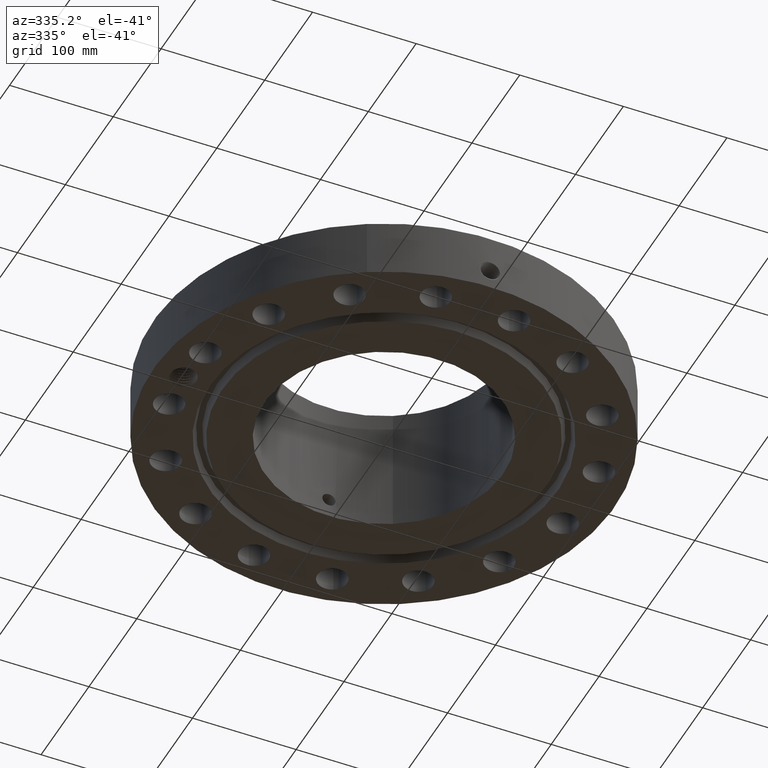
[diagram: clean part render]
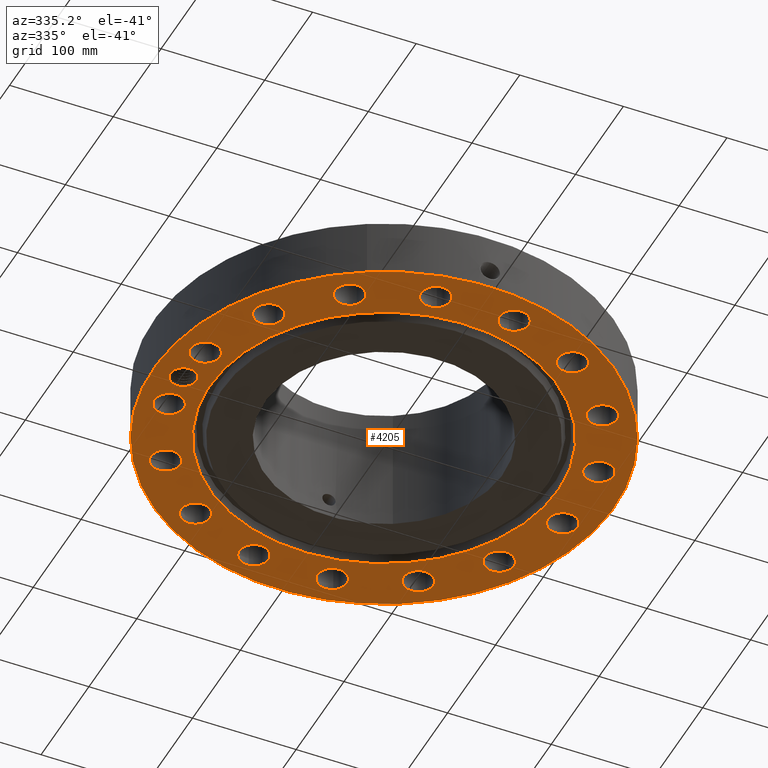
[diagram: same view with one face highlighted and labeled with its STEP entity id]
A machine part, auxiliary view. The second image highlights one B-rep face of the part: STEP entity #4205.
In plain terms, the highlighted planar face has unit normal (0, 0, -1).
Its self-contained STEP definition (entity closure, byte-faithful):
#598=AXIS2_PLACEMENT_3D('Plane Axis2P3D',#595,#596,#597) ;
#3275=AXIS2_PLACEMENT_3D('Circle Axis2P3D',#3273,#3274,$) ;
#3301=AXIS2_PLACEMENT_3D('Circle Axis2P3D',#3299,#3300,$) ;
#3849=AXIS2_PLACEMENT_3D('Circle Axis2P3D',#3847,#3848,$) ;
#3858=AXIS2_PLACEMENT_3D('Circle Axis2P3D',#3856,#3857,$) ;
#3867=AXIS2_PLACEMENT_3D('Circle Axis2P3D',#3865,#3866,$) ;
#3876=AXIS2_PLACEMENT_3D('Circle Axis2P3D',#3874,#3875,$) ;
#3883=AXIS2_PLACEMENT_3D('Circle Axis2P3D',#3881,#3882,$) ;
#3915=AXIS2_PLACEMENT_3D('Circle Axis2P3D',#3913,#3914,$) ;
#3924=AXIS2_PLACEMENT_3D('Circle Axis2P3D',#3922,#3923,$) ;
#3933=AXIS2_PLACEMENT_3D('Circle Axis2P3D',#3931,#3932,$) ;
#3942=AXIS2_PLACEMENT_3D('Circle Axis2P3D',#3940,#3941,$) ;
#3951=AXIS2_PLACEMENT_3D('Circle Axis2P3D',#3949,#3950,$) ;
#3960=AXIS2_PLACEMENT_3D('Circle Axis2P3D',#3958,#3959,$) ;
#3969=AXIS2_PLACEMENT_3D('Circle Axis2P3D',#3967,#3968,$) ;
#3978=AXIS2_PLACEMENT_3D('Circle Axis2P3D',#3976,#3977,$) ;
#3987=AXIS2_PLACEMENT_3D('Circle Axis2P3D',#3985,#3986,$) ;
#3996=AXIS2_PLACEMENT_3D('Circle Axis2P3D',#3994,#3995,$) ;
#4005=AXIS2_PLACEMENT_3D('Circle Axis2P3D',#4003,#4004,$) ;
#4014=AXIS2_PLACEMENT_3D('Circle Axis2P3D',#4012,#4013,$) ;
#4023=AXIS2_PLACEMENT_3D('Circle Axis2P3D',#4021,#4022,$) ;
#4032=AXIS2_PLACEMENT_3D('Circle Axis2P3D',#4030,#4031,$) ;
#4041=AXIS2_PLACEMENT_3D('Circle Axis2P3D',#4039,#4040,$) ;
#4050=AXIS2_PLACEMENT_3D('Circle Axis2P3D',#4048,#4049,$) ;
#4059=AXIS2_PLACEMENT_3D('Circle Axis2P3D',#4057,#4058,$) ;
#4068=AXIS2_PLACEMENT_3D('Circle Axis2P3D',#4066,#4067,$) ;
#4077=AXIS2_PLACEMENT_3D('Circle Axis2P3D',#4075,#4076,$) ;
#4086=AXIS2_PLACEMENT_3D('Circle Axis2P3D',#4084,#4085,$) ;
#4095=AXIS2_PLACEMENT_3D('Circle Axis2P3D',#4093,#4094,$) ;
#4104=AXIS2_PLACEMENT_3D('Circle Axis2P3D',#4102,#4103,$) ;
#4113=AXIS2_PLACEMENT_3D('Circle Axis2P3D',#4111,#4112,$) ;
#4122=AXIS2_PLACEMENT_3D('Circle Axis2P3D',#4120,#4121,$) ;
#4131=AXIS2_PLACEMENT_3D('Circle Axis2P3D',#4129,#4130,$) ;
#4140=AXIS2_PLACEMENT_3D('Circle Axis2P3D',#4138,#4139,$) ;
#4149=AXIS2_PLACEMENT_3D('Circle Axis2P3D',#4147,#4148,$) ;
#4158=AXIS2_PLACEMENT_3D('Circle Axis2P3D',#4156,#4157,$) ;
#4167=AXIS2_PLACEMENT_3D('Circle Axis2P3D',#4165,#4166,$) ;
#4176=AXIS2_PLACEMENT_3D('Circle Axis2P3D',#4174,#4175,$) ;
#4185=AXIS2_PLACEMENT_3D('Circle Axis2P3D',#4183,#4184,$) ;
#4194=AXIS2_PLACEMENT_3D('Circle Axis2P3D',#4192,#4193,$) ;
#595=CARTESIAN_POINT('Axis2P3D Location',(0.,4.53100000002,0.)) ;
#3273=CARTESIAN_POINT('Axis2P3D Location',(0.,0.,3.49676543189E-017)) ;
#3277=CARTESIAN_POINT('Vertex',(-3.16876309742,5.80038194284,3.49676543189E-017)) ;
#3279=CARTESIAN_POINT('Vertex',(3.16876309742,-5.80038194284,3.49676543189E-017)) ;
#3299=CARTESIAN_POINT('Axis2P3D Location',(0.,0.,3.49676543189E-017)) ;
#3847=CARTESIAN_POINT('Axis2P3D Location',(0.,0.,0.)) ;
#3851=CARTESIAN_POINT('Vertex',(-4.1949734628,-7.67884741657,8.39223703654E-016)) ;
#3853=CARTESIAN_POINT('Vertex',(4.1949734628,7.67884741657,8.39223703654E-016)) ;
#3856=CARTESIAN_POINT('Axis2P3D Location',(0.,0.,0.)) ;
#3865=CARTESIAN_POINT('Axis2P3D Location',(-7.62500000003,-1.1189649382E-015,0.)) ;
#3869=CARTESIAN_POINT('Vertex',(-7.18840267549,-0.238514205457,0.)) ;
#3871=CARTESIAN_POINT('Vertex',(-8.11670610883,0.0757056971032,0.)) ;
#3874=CARTESIAN_POINT('Axis2P3D Location',(-7.62500000003,-1.1189649382E-015,0.)) ;
#3878=CARTESIAN_POINT('Vertex',(-8.06159732457,0.238514205457,0.)) ;
#3881=CARTESIAN_POINT('Axis2P3D Location',(-7.62500000003,-1.1189649382E-015,0.)) ;
#3885=CARTESIAN_POINT('Vertex',(-8.08311349621,0.194005862324,0.)) ;
#3889=CARTESIAN_POINT('Control Point',(-8.10602538921,0.136462282232,0.)) ;
#3890=CARTESIAN_POINT('Control Point',(-8.10215852615,0.14825804559,0.)) ;
#3891=CARTESIAN_POINT('Control Point',(-8.09792807786,0.159925190698,0.)) ;
#3892=CARTESIAN_POINT('Control Point',(-8.09333938542,0.171448620247,0.)) ;
#3893=CARTESIAN_POINT('Control Point',(-8.08839877955,0.182813600093,0.)) ;
#3894=CARTESIAN_POINT('Control Point',(-8.08311349621,0.194005862324,0.)) ;
#3895=CARTESIAN_POINT('Vertex',(-8.10602538921,0.13646228223,-4.37095678986E-018)) ;
#3899=CARTESIAN_POINT('Control Point',(-8.10602538921,0.13646228223,0.)) ;
#3900=CARTESIAN_POINT('Control Point',(-8.10891322437,0.124447634858,0.)) ;
#3901=CARTESIAN_POINT('Control Point',(-8.11142831538,0.11234909254,0.)) ;
#3902=CARTESIAN_POINT('Control Point',(-8.11356707991,0.100182066304,0.)) ;
#3903=CARTESIAN_POINT('Control Point',(-8.11532689557,0.087962282477,0.)) ;
#3904=CARTESIAN_POINT('Control Point',(-8.11670610883,0.0757056971032,0.)) ;
#3913=CARTESIAN_POINT('Axis2P3D Location',(7.4784877631,-1.48756370538,0.)) ;
#3917=CARTESIAN_POINT('Vertex',(7.96993399777,-1.756042007,0.)) ;
#3919=CARTESIAN_POINT('Vertex',(6.98704152844,-1.21908540376,0.)) ;
#3922=CARTESIAN_POINT('Axis2P3D Location',(7.4784877631,-1.48756370538,0.)) ;
#3931=CARTESIAN_POINT('Axis2P3D Location',(6.33995579383,-4.23622302679,0.)) ;
#3935=CARTESIAN_POINT('Vertex',(5.98866087428,-3.8001130871,0.)) ;
#3937=CARTESIAN_POINT('Vertex',(6.69125071339,-4.67233296648,0.)) ;
#3940=CARTESIAN_POINT('Axis2P3D Location',(6.33995579383,-4.23622302679,0.)) ;
#3949=CARTESIAN_POINT('Axis2P3D Location',(4.23622302679,-6.33995579383,0.)) ;
#3953=CARTESIAN_POINT('Vertex',(4.07856088935,-5.80260800104,0.)) ;
#3955=CARTESIAN_POINT('Vertex',(4.39388516423,-6.87730358663,0.)) ;
#3958=CARTESIAN_POINT('Axis2P3D Location',(4.23622302679,-6.33995579383,0.)) ;
#3967=CARTESIAN_POINT('Axis2P3D Location',(1.48756370538,-7.4784877631,0.)) ;
#3971=CARTESIAN_POINT('Vertex',(1.54753698127,-6.92170844759,0.)) ;
#3973=CARTESIAN_POINT('Vertex',(1.42759042949,-8.03526707862,0.)) ;
#3976=CARTESIAN_POINT('Axis2P3D Location',(1.48756370538,-7.4784877631,0.)) ;
#3985=CARTESIAN_POINT('Axis2P3D Location',(-1.48756370538,-7.4784877631,0.)) ;
#3989=CARTESIAN_POINT('Vertex',(-1.21908540376,-6.98704152844,0.)) ;
#3991=CARTESIAN_POINT('Vertex',(-1.756042007,-7.96993399777,0.)) ;
#3994=CARTESIAN_POINT('Axis2P3D Location',(-1.48756370538,-7.4784877631,0.)) ;
#4003=CARTESIAN_POINT('Axis2P3D Location',(-4.23622302679,-6.33995579383,0.)) ;
#4007=CARTESIAN_POINT('Vertex',(-3.8001130871,-5.98866087428,0.)) ;
#4009=CARTESIAN_POINT('Vertex',(-4.67233296648,-6.69125071339,0.)) ;
#4012=CARTESIAN_POINT('Axis2P3D Location',(-4.23622302679,-6.33995579383,0.)) ;
#4021=CARTESIAN_POINT('Axis2P3D Location',(-6.33995579383,-4.23622302679,0.)) ;
#4025=CARTESIAN_POINT('Vertex',(-5.80260800104,-4.07856088935,0.)) ;
#4027=CARTESIAN_POINT('Vertex',(-6.87730358663,-4.39388516423,0.)) ;
#4030=CARTESIAN_POINT('Axis2P3D Location',(-6.33995579383,-4.23622302679,0.)) ;
#4039=CARTESIAN_POINT('Axis2P3D Location',(-7.4784877631,-1.48756370538,0.)) ;
#4043=CARTESIAN_POINT('Vertex',(-6.92170844759,-1.54753698127,0.)) ;
#4045=CARTESIAN_POINT('Vertex',(-8.03526707862,-1.42759042949,0.)) ;
#4048=CARTESIAN_POINT('Axis2P3D Location',(-7.4784877631,-1.48756370538,0.)) ;
#4057=CARTESIAN_POINT('Axis2P3D Location',(-7.4784877631,1.48756370538,0.)) ;
#4061=CARTESIAN_POINT('Vertex',(-6.98704152844,1.21908540376,0.)) ;
#4063=CARTESIAN_POINT('Vertex',(-7.96993399777,1.756042007,0.)) ;
#4066=CARTESIAN_POINT('Axis2P3D Location',(-7.4784877631,1.48756370538,0.)) ;
#4075=CARTESIAN_POINT('Axis2P3D Location',(-6.33995579383,4.23622302679,0.)) ;
#4079=CARTESIAN_POINT('Vertex',(-5.98866087428,3.8001130871,0.)) ;
#4081=CARTESIAN_POINT('Vertex',(-6.69125071339,4.67233296648,0.)) ;
#4084=CARTESIAN_POINT('Axis2P3D Location',(-6.33995579383,4.23622302679,0.)) ;
#4093=CARTESIAN_POINT('Axis2P3D Location',(-4.23622302679,6.33995579383,0.)) ;
#4097=CARTESIAN_POINT('Vertex',(-4.07856088935,5.80260800104,0.)) ;
#4099=CARTESIAN_POINT('Vertex',(-4.39388516423,6.87730358663,0.)) ;
#4102=CARTESIAN_POINT('Axis2P3D Location',(-4.23622302679,6.33995579383,0.)) ;
#4111=CARTESIAN_POINT('Axis2P3D Location',(-1.48756370538,7.4784877631,0.)) ;
#4115=CARTESIAN_POINT('Vertex',(-1.54753698127,6.92170844759,0.)) ;
#4117=CARTESIAN_POINT('Vertex',(-1.42759042949,8.03526707862,0.)) ;
#4120=CARTESIAN_POINT('Axis2P3D Location',(-1.48756370538,7.4784877631,0.)) ;
#4129=CARTESIAN_POINT('Axis2P3D Location',(1.48756370538,7.4784877631,0.)) ;
#4133=CARTESIAN_POINT('Vertex',(1.21908540376,6.98704152844,0.)) ;
#4135=CARTESIAN_POINT('Vertex',(1.756042007,7.96993399777,0.)) ;
#4138=CARTESIAN_POINT('Axis2P3D Location',(1.48756370538,7.4784877631,0.)) ;
#4147=CARTESIAN_POINT('Axis2P3D Location',(4.23622302679,6.33995579383,0.)) ;
#4151=CARTESIAN_POINT('Vertex',(3.8001130871,5.98866087428,0.)) ;
#4153=CARTESIAN_POINT('Vertex',(4.67233296648,6.69125071339,-1.67844740731E-015)) ;
#4156=CARTESIAN_POINT('Axis2P3D Location',(4.23622302679,6.33995579383,0.)) ;
#4165=CARTESIAN_POINT('Axis2P3D Location',(6.33995579383,4.23622302679,0.)) ;
#4169=CARTESIAN_POINT('Vertex',(5.80260800104,4.07856088935,0.)) ;
#4171=CARTESIAN_POINT('Vertex',(6.87730358663,4.39388516423,0.)) ;
#4174=CARTESIAN_POINT('Axis2P3D Location',(6.33995579383,4.23622302679,0.)) ;
#4183=CARTESIAN_POINT('Axis2P3D Location',(7.4784877631,1.48756370538,0.)) ;
#4187=CARTESIAN_POINT('Vertex',(6.92170844759,1.54753698127,0.)) ;
#4189=CARTESIAN_POINT('Vertex',(8.03526707862,1.42759042949,0.)) ;
#4192=CARTESIAN_POINT('Axis2P3D Location',(7.4784877631,1.48756370538,0.)) ;
#596=DIRECTION('Axis2P3D Direction',(0.,0.,-0.0393700787402)) ;
#597=DIRECTION('Axis2P3D XDirection',(0.0393700787402,0.,0.)) ;
#3274=DIRECTION('Axis2P3D Direction',(0.,0.,-0.0393700787402)) ;
#3300=DIRECTION('Axis2P3D Direction',(0.,0.,-0.0393700787402)) ;
#3848=DIRECTION('Axis2P3D Direction',(0.,0.,-0.0393700787402)) ;
#3857=DIRECTION('Axis2P3D Direction',(0.,0.,-0.0393700787402)) ;
#3866=DIRECTION('Axis2P3D Direction',(0.,0.,-0.0393700787402)) ;
#3875=DIRECTION('Axis2P3D Direction',(0.,0.,-0.0393700787402)) ;
#3882=DIRECTION('Axis2P3D Direction',(0.,0.,-0.0393700787402)) ;
#3914=DIRECTION('Axis2P3D Direction',(0.,0.,-0.0393700787402)) ;
#3923=DIRECTION('Axis2P3D Direction',(0.,0.,-0.0393700787402)) ;
#3932=DIRECTION('Axis2P3D Direction',(0.,0.,-0.0393700787402)) ;
#3941=DIRECTION('Axis2P3D Direction',(0.,0.,-0.0393700787402)) ;
#3950=DIRECTION('Axis2P3D Direction',(0.,0.,-0.0393700787402)) ;
#3959=DIRECTION('Axis2P3D Direction',(0.,0.,-0.0393700787402)) ;
#3968=DIRECTION('Axis2P3D Direction',(0.,0.,-0.0393700787402)) ;
#3977=DIRECTION('Axis2P3D Direction',(0.,0.,-0.0393700787402)) ;
#3986=DIRECTION('Axis2P3D Direction',(0.,0.,-0.0393700787402)) ;
#3995=DIRECTION('Axis2P3D Direction',(0.,0.,-0.0393700787402)) ;
#4004=DIRECTION('Axis2P3D Direction',(0.,0.,-0.0393700787402)) ;
#4013=DIRECTION('Axis2P3D Direction',(0.,0.,-0.0393700787402)) ;
#4022=DIRECTION('Axis2P3D Direction',(0.,0.,-0.0393700787402)) ;
#4031=DIRECTION('Axis2P3D Direction',(0.,0.,-0.0393700787402)) ;
#4040=DIRECTION('Axis2P3D Direction',(0.,0.,-0.0393700787402)) ;
#4049=DIRECTION('Axis2P3D Direction',(0.,0.,-0.0393700787402)) ;
#4058=DIRECTION('Axis2P3D Direction',(0.,0.,-0.0393700787402)) ;
#4067=DIRECTION('Axis2P3D Direction',(0.,0.,-0.0393700787402)) ;
#4076=DIRECTION('Axis2P3D Direction',(0.,0.,-0.0393700787402)) ;
#4085=DIRECTION('Axis2P3D Direction',(0.,0.,-0.0393700787402)) ;
#4094=DIRECTION('Axis2P3D Direction',(0.,0.,-0.0393700787402)) ;
#4103=DIRECTION('Axis2P3D Direction',(0.,0.,-0.0393700787402)) ;
#4112=DIRECTION('Axis2P3D Direction',(0.,0.,-0.0393700787402)) ;
#4121=DIRECTION('Axis2P3D Direction',(0.,0.,-0.0393700787402)) ;
#4130=DIRECTION('Axis2P3D Direction',(0.,0.,-0.0393700787402)) ;
#4139=DIRECTION('Axis2P3D Direction',(0.,0.,-0.0393700787402)) ;
#4148=DIRECTION('Axis2P3D Direction',(0.,0.,-0.0393700787402)) ;
#4157=DIRECTION('Axis2P3D Direction',(0.,0.,-0.0393700787402)) ;
#4166=DIRECTION('Axis2P3D Direction',(0.,0.,-0.0393700787402)) ;
#4175=DIRECTION('Axis2P3D Direction',(0.,0.,-0.0393700787402)) ;
#4184=DIRECTION('Axis2P3D Direction',(0.,0.,-0.0393700787402)) ;
#4193=DIRECTION('Axis2P3D Direction',(0.,0.,-0.0393700787402)) ;
#3862=ORIENTED_EDGE('',*,*,#3855,.T.) ;
#3863=ORIENTED_EDGE('',*,*,#3860,.T.) ;
#3907=ORIENTED_EDGE('',*,*,#3873,.F.) ;
#3908=ORIENTED_EDGE('',*,*,#3880,.F.) ;
#3909=ORIENTED_EDGE('',*,*,#3887,.F.) ;
#3910=ORIENTED_EDGE('',*,*,#3897,.F.) ;
#3911=ORIENTED_EDGE('',*,*,#3905,.T.) ;
#3928=ORIENTED_EDGE('',*,*,#3921,.F.) ;
#3929=ORIENTED_EDGE('',*,*,#3926,.F.) ;
#3946=ORIENTED_EDGE('',*,*,#3939,.F.) ;
#3947=ORIENTED_EDGE('',*,*,#3944,.F.) ;
#3964=ORIENTED_EDGE('',*,*,#3957,.F.) ;
#3965=ORIENTED_EDGE('',*,*,#3962,.F.) ;
#3982=ORIENTED_EDGE('',*,*,#3975,.F.) ;
#3983=ORIENTED_EDGE('',*,*,#3980,.F.) ;
#4000=ORIENTED_EDGE('',*,*,#3993,.F.) ;
#4001=ORIENTED_EDGE('',*,*,#3998,.F.) ;
#4018=ORIENTED_EDGE('',*,*,#4011,.F.) ;
#4019=ORIENTED_EDGE('',*,*,#4016,.F.) ;
#4036=ORIENTED_EDGE('',*,*,#4029,.F.) ;
#4037=ORIENTED_EDGE('',*,*,#4034,.F.) ;
#4054=ORIENTED_EDGE('',*,*,#4047,.F.) ;
#4055=ORIENTED_EDGE('',*,*,#4052,.F.) ;
#4072=ORIENTED_EDGE('',*,*,#4065,.F.) ;
#4073=ORIENTED_EDGE('',*,*,#4070,.F.) ;
#4090=ORIENTED_EDGE('',*,*,#4083,.F.) ;
#4091=ORIENTED_EDGE('',*,*,#4088,.F.) ;
#4108=ORIENTED_EDGE('',*,*,#4101,.F.) ;
#4109=ORIENTED_EDGE('',*,*,#4106,.F.) ;
#4126=ORIENTED_EDGE('',*,*,#4119,.F.) ;
#4127=ORIENTED_EDGE('',*,*,#4124,.F.) ;
#4144=ORIENTED_EDGE('',*,*,#4137,.F.) ;
#4145=ORIENTED_EDGE('',*,*,#4142,.F.) ;
#4162=ORIENTED_EDGE('',*,*,#4155,.F.) ;
#4163=ORIENTED_EDGE('',*,*,#4160,.F.) ;
#4180=ORIENTED_EDGE('',*,*,#4173,.F.) ;
#4181=ORIENTED_EDGE('',*,*,#4178,.F.) ;
#4198=ORIENTED_EDGE('',*,*,#4191,.F.) ;
#4199=ORIENTED_EDGE('',*,*,#4196,.F.) ;
#4202=ORIENTED_EDGE('',*,*,#3303,.F.) ;
#4203=ORIENTED_EDGE('',*,*,#3281,.F.) ;
#3912=FACE_BOUND('',#3906,.T.) ;
#3930=FACE_BOUND('',#3927,.T.) ;
#3948=FACE_BOUND('',#3945,.T.) ;
#3966=FACE_BOUND('',#3963,.T.) ;
#3984=FACE_BOUND('',#3981,.T.) ;
#4002=FACE_BOUND('',#3999,.T.) ;
#4020=FACE_BOUND('',#4017,.T.) ;
#4038=FACE_BOUND('',#4035,.T.) ;
#4056=FACE_BOUND('',#4053,.T.) ;
#4074=FACE_BOUND('',#4071,.T.) ;
#4092=FACE_BOUND('',#4089,.T.) ;
#4110=FACE_BOUND('',#4107,.T.) ;
#4128=FACE_BOUND('',#4125,.T.) ;
#4146=FACE_BOUND('',#4143,.T.) ;
#4164=FACE_BOUND('',#4161,.T.) ;
#4182=FACE_BOUND('',#4179,.T.) ;
#4200=FACE_BOUND('',#4197,.T.) ;
#4204=FACE_BOUND('',#4201,.T.) ;
#4205=ADVANCED_FACE('PartBody',(#3864,#3912,#3930,#3948,#3966,#3984,#4002,#4020,#4038,#4056,#4074,#4092,#4110,#4128,#4146,#4164,#4182,#4200,#4204),#599,.T.) ;
#3888=B_SPLINE_CURVE_WITH_KNOTS('',5,(#3889,#3890,#3891,#3892,#3893,#3894),.UNSPECIFIED.,.F.,.U.,(6,6),(0.,2.1641313637),.UNSPECIFIED.) ;
#3898=B_SPLINE_CURVE_WITH_KNOTS('',5,(#3899,#3900,#3901,#3902,#3903,#3904),.UNSPECIFIED.,.F.,.U.,(6,6),(0.,2.1542607375),.UNSPECIFIED.) ;
#3276=CIRCLE('generated circle',#3275,6.60950000003) ;
#3302=CIRCLE('generated circle',#3301,6.60950000003) ;
#3850=CIRCLE('generated circle',#3849,8.75000000003) ;
#3859=CIRCLE('generated circle',#3858,8.75000000003) ;
#3868=CIRCLE('generated circle',#3867,0.497500000002) ;
#3877=CIRCLE('generated circle',#3876,0.497500000002) ;
#3884=CIRCLE('generated circle',#3883,0.497500000002) ;
#3916=CIRCLE('generated circle',#3915,0.560000000002) ;
#3925=CIRCLE('generated circle',#3924,0.560000000002) ;
#3934=CIRCLE('generated circle',#3933,0.560000000002) ;
#3943=CIRCLE('generated circle',#3942,0.560000000002) ;
#3952=CIRCLE('generated circle',#3951,0.560000000002) ;
#3961=CIRCLE('generated circle',#3960,0.560000000002) ;
#3970=CIRCLE('generated circle',#3969,0.560000000002) ;
#3979=CIRCLE('generated circle',#3978,0.560000000002) ;
#3988=CIRCLE('generated circle',#3987,0.560000000002) ;
#3997=CIRCLE('generated circle',#3996,0.560000000002) ;
#4006=CIRCLE('generated circle',#4005,0.560000000002) ;
#4015=CIRCLE('generated circle',#4014,0.560000000002) ;
#4024=CIRCLE('generated circle',#4023,0.560000000002) ;
#4033=CIRCLE('generated circle',#4032,0.560000000002) ;
#4042=CIRCLE('generated circle',#4041,0.560000000002) ;
#4051=CIRCLE('generated circle',#4050,0.560000000002) ;
#4060=CIRCLE('generated circle',#4059,0.560000000002) ;
#4069=CIRCLE('generated circle',#4068,0.560000000002) ;
#4078=CIRCLE('generated circle',#4077,0.560000000002) ;
#4087=CIRCLE('generated circle',#4086,0.560000000002) ;
#4096=CIRCLE('generated circle',#4095,0.560000000002) ;
#4105=CIRCLE('generated circle',#4104,0.560000000002) ;
#4114=CIRCLE('generated circle',#4113,0.560000000002) ;
#4123=CIRCLE('generated circle',#4122,0.560000000002) ;
#4132=CIRCLE('generated circle',#4131,0.560000000002) ;
#4141=CIRCLE('generated circle',#4140,0.560000000002) ;
#4150=CIRCLE('generated circle',#4149,0.560000000002) ;
#4159=CIRCLE('generated circle',#4158,0.560000000002) ;
#4168=CIRCLE('generated circle',#4167,0.560000000002) ;
#4177=CIRCLE('generated circle',#4176,0.560000000002) ;
#4186=CIRCLE('generated circle',#4185,0.560000000002) ;
#4195=CIRCLE('generated circle',#4194,0.560000000002) ;
#3281=EDGE_CURVE('',#3278,#3280,#3276,.T.) ;
#3303=EDGE_CURVE('',#3280,#3278,#3302,.T.) ;
#3855=EDGE_CURVE('',#3852,#3854,#3850,.T.) ;
#3860=EDGE_CURVE('',#3854,#3852,#3859,.T.) ;
#3873=EDGE_CURVE('',#3870,#3872,#3868,.T.) ;
#3880=EDGE_CURVE('',#3879,#3870,#3877,.T.) ;
#3887=EDGE_CURVE('',#3886,#3879,#3884,.T.) ;
#3897=EDGE_CURVE('',#3896,#3886,#3888,.T.) ;
#3905=EDGE_CURVE('',#3896,#3872,#3898,.T.) ;
#3921=EDGE_CURVE('',#3918,#3920,#3916,.T.) ;
#3926=EDGE_CURVE('',#3920,#3918,#3925,.T.) ;
#3939=EDGE_CURVE('',#3936,#3938,#3934,.T.) ;
#3944=EDGE_CURVE('',#3938,#3936,#3943,.T.) ;
#3957=EDGE_CURVE('',#3954,#3956,#3952,.T.) ;
#3962=EDGE_CURVE('',#3956,#3954,#3961,.T.) ;
#3975=EDGE_CURVE('',#3972,#3974,#3970,.T.) ;
#3980=EDGE_CURVE('',#3974,#3972,#3979,.T.) ;
#3993=EDGE_CURVE('',#3990,#3992,#3988,.T.) ;
#3998=EDGE_CURVE('',#3992,#3990,#3997,.T.) ;
#4011=EDGE_CURVE('',#4008,#4010,#4006,.T.) ;
#4016=EDGE_CURVE('',#4010,#4008,#4015,.T.) ;
#4029=EDGE_CURVE('',#4026,#4028,#4024,.T.) ;
#4034=EDGE_CURVE('',#4028,#4026,#4033,.T.) ;
#4047=EDGE_CURVE('',#4044,#4046,#4042,.T.) ;
#4052=EDGE_CURVE('',#4046,#4044,#4051,.T.) ;
#4065=EDGE_CURVE('',#4062,#4064,#4060,.T.) ;
#4070=EDGE_CURVE('',#4064,#4062,#4069,.T.) ;
#4083=EDGE_CURVE('',#4080,#4082,#4078,.T.) ;
#4088=EDGE_CURVE('',#4082,#4080,#4087,.T.) ;
#4101=EDGE_CURVE('',#4098,#4100,#4096,.T.) ;
#4106=EDGE_CURVE('',#4100,#4098,#4105,.T.) ;
#4119=EDGE_CURVE('',#4116,#4118,#4114,.T.) ;
#4124=EDGE_CURVE('',#4118,#4116,#4123,.T.) ;
#4137=EDGE_CURVE('',#4134,#4136,#4132,.T.) ;
#4142=EDGE_CURVE('',#4136,#4134,#4141,.T.) ;
#4155=EDGE_CURVE('',#4152,#4154,#4150,.T.) ;
#4160=EDGE_CURVE('',#4154,#4152,#4159,.T.) ;
#4173=EDGE_CURVE('',#4170,#4172,#4168,.T.) ;
#4178=EDGE_CURVE('',#4172,#4170,#4177,.T.) ;
#4191=EDGE_CURVE('',#4188,#4190,#4186,.T.) ;
#4196=EDGE_CURVE('',#4190,#4188,#4195,.T.) ;
#3861=EDGE_LOOP('',(#3862,#3863)) ;
#3906=EDGE_LOOP('',(#3907,#3908,#3909,#3910,#3911)) ;
#3927=EDGE_LOOP('',(#3928,#3929)) ;
#3945=EDGE_LOOP('',(#3946,#3947)) ;
#3963=EDGE_LOOP('',(#3964,#3965)) ;
#3981=EDGE_LOOP('',(#3982,#3983)) ;
#3999=EDGE_LOOP('',(#4000,#4001)) ;
#4017=EDGE_LOOP('',(#4018,#4019)) ;
#4035=EDGE_LOOP('',(#4036,#4037)) ;
#4053=EDGE_LOOP('',(#4054,#4055)) ;
#4071=EDGE_LOOP('',(#4072,#4073)) ;
#4089=EDGE_LOOP('',(#4090,#4091)) ;
#4107=EDGE_LOOP('',(#4108,#4109)) ;
#4125=EDGE_LOOP('',(#4126,#4127)) ;
#4143=EDGE_LOOP('',(#4144,#4145)) ;
#4161=EDGE_LOOP('',(#4162,#4163)) ;
#4179=EDGE_LOOP('',(#4180,#4181)) ;
#4197=EDGE_LOOP('',(#4198,#4199)) ;
#4201=EDGE_LOOP('',(#4202,#4203)) ;
#3864=FACE_OUTER_BOUND('',#3861,.T.) ;
#599=PLANE('',#598) ;
#3278=VERTEX_POINT('',#3277) ;
#3280=VERTEX_POINT('',#3279) ;
#3852=VERTEX_POINT('',#3851) ;
#3854=VERTEX_POINT('',#3853) ;
#3870=VERTEX_POINT('',#3869) ;
#3872=VERTEX_POINT('',#3871) ;
#3879=VERTEX_POINT('',#3878) ;
#3886=VERTEX_POINT('',#3885) ;
#3896=VERTEX_POINT('',#3895) ;
#3918=VERTEX_POINT('',#3917) ;
#3920=VERTEX_POINT('',#3919) ;
#3936=VERTEX_POINT('',#3935) ;
#3938=VERTEX_POINT('',#3937) ;
#3954=VERTEX_POINT('',#3953) ;
#3956=VERTEX_POINT('',#3955) ;
#3972=VERTEX_POINT('',#3971) ;
#3974=VERTEX_POINT('',#3973) ;
#3990=VERTEX_POINT('',#3989) ;
#3992=VERTEX_POINT('',#3991) ;
#4008=VERTEX_POINT('',#4007) ;
#4010=VERTEX_POINT('',#4009) ;
#4026=VERTEX_POINT('',#4025) ;
#4028=VERTEX_POINT('',#4027) ;
#4044=VERTEX_POINT('',#4043) ;
#4046=VERTEX_POINT('',#4045) ;
#4062=VERTEX_POINT('',#4061) ;
#4064=VERTEX_POINT('',#4063) ;
#4080=VERTEX_POINT('',#4079) ;
#4082=VERTEX_POINT('',#4081) ;
#4098=VERTEX_POINT('',#4097) ;
#4100=VERTEX_POINT('',#4099) ;
#4116=VERTEX_POINT('',#4115) ;
#4118=VERTEX_POINT('',#4117) ;
#4134=VERTEX_POINT('',#4133) ;
#4136=VERTEX_POINT('',#4135) ;
#4152=VERTEX_POINT('',#4151) ;
#4154=VERTEX_POINT('',#4153) ;
#4170=VERTEX_POINT('',#4169) ;
#4172=VERTEX_POINT('',#4171) ;
#4188=VERTEX_POINT('',#4187) ;
#4190=VERTEX_POINT('',#4189) ;